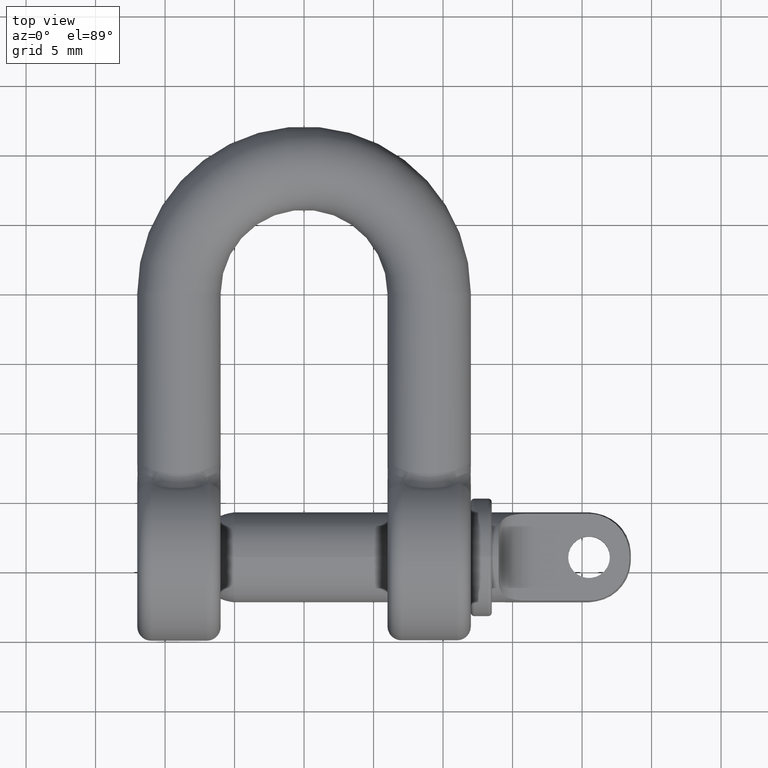
[diagram: clean part render]
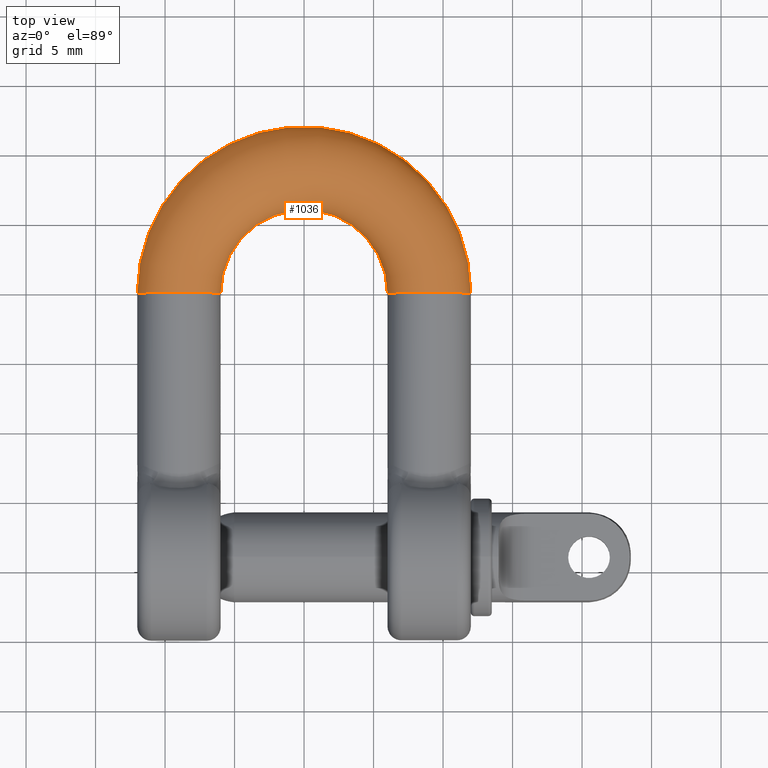
[diagram: same view with one face highlighted and labeled with its STEP entity id]
A machine part, top view. The second image highlights one B-rep face of the part: STEP entity #1036.
In plain terms, the highlighted toroidal blend (fillet) surface has major radius 9 mm and minor (blend) radius 3 mm.
Its self-contained STEP definition (entity closure, byte-faithful):
#975 = CARTESIAN_POINT ( 'NONE',  ( 6.000000000000000000, 25.00000000000000000, 3.673940397442061300E-016 ) ) ;
#1036 = ADVANCED_FACE ( 'NONE', ( #11951 ), #2427, .T. ) ;
#1877 = CIRCLE ( 'NONE', #10130, 6.000000000000000000 ) ;
#1952 = ORIENTED_EDGE ( 'NONE', *, *, #2062, .F. ) ;
#1965 = DIRECTION ( 'NONE',  ( 1.224646799147353200E-016, -1.000000000000000000, 0.0000000000000000000 ) ) ;
#1990 = VERTEX_POINT ( 'NONE', #9494 ) ;
#2062 = EDGE_CURVE ( 'NONE', #4591, #5235, #5464, .T. ) ;
#2145 = CIRCLE ( 'NONE', #6601, 12.00000000000000200 ) ;
#2188 = ORIENTED_EDGE ( 'NONE', *, *, #10260, .T. ) ;
#2249 = EDGE_LOOP ( 'NONE', ( #4106, #12828, #2188, #1952 ) ) ;
#2427 = TOROIDAL_SURFACE ( 'NONE', #10992, 9.000000000000001800, 3.000000000000000400 ) ;
#2856 = EDGE_CURVE ( 'NONE', #13919, #4591, #2145, .T. ) ;
#3449 = DIRECTION ( 'NONE',  ( -0.0000000000000000000, -0.0000000000000000000, -1.000000000000000000 ) ) ;
#4106 = ORIENTED_EDGE ( 'NONE', *, *, #2856, .F. ) ;
#4270 = DIRECTION ( 'NONE',  ( -1.000000000000000000, 0.0000000000000000000, 0.0000000000000000000 ) ) ;
#4479 = CIRCLE ( 'NONE', #5223, 3.000000000000000400 ) ;
#4591 = VERTEX_POINT ( 'NONE', #9710 ) ;
#5223 = AXIS2_PLACEMENT_3D ( 'NONE', #6955, #8041, #10436 ) ;
#5235 = VERTEX_POINT ( 'NONE', #975 ) ;
#5273 = DIRECTION ( 'NONE',  ( -1.000000000000000000, 0.0000000000000000000, 0.0000000000000000000 ) ) ;
#5464 = CIRCLE ( 'NONE', #10163, 3.000000000000000400 ) ;
#5511 = DIRECTION ( 'NONE',  ( -1.000000000000000000, 0.0000000000000000000, 0.0000000000000000000 ) ) ;
#6601 = AXIS2_PLACEMENT_3D ( 'NONE', #14290, #11982, #5273 ) ;
#6955 = CARTESIAN_POINT ( 'NONE',  ( -9.000000000000001800, 25.00000000000000000, 0.0000000000000000000 ) ) ;
#7314 = DIRECTION ( 'NONE',  ( 0.0000000000000000000, 0.0000000000000000000, 1.000000000000000000 ) ) ;
#7834 = CARTESIAN_POINT ( 'NONE',  ( 0.0000000000000000000, 25.00000000000000000, 3.673940397442060400E-016 ) ) ;
#7966 = CARTESIAN_POINT ( 'NONE',  ( -12.00000000000000200, 25.00000000000000000, 3.673940397442059900E-016 ) ) ;
#8041 = DIRECTION ( 'NONE',  ( 0.0000000000000000000, 1.000000000000000000, 0.0000000000000000000 ) ) ;
#8600 = CARTESIAN_POINT ( 'NONE',  ( 9.000000000000001800, 25.00000000000000000, 0.0000000000000000000 ) ) ;
#9494 = CARTESIAN_POINT ( 'NONE',  ( -6.000000000000000000, 25.00000000000000000, 0.0000000000000000000 ) ) ;
#9710 = CARTESIAN_POINT ( 'NONE',  ( 12.00000000000000200, 25.00000000000000000, 0.0000000000000000000 ) ) ;
#9914 = CARTESIAN_POINT ( 'NONE',  ( 0.0000000000000000000, 25.00000000000000000, 0.0000000000000000000 ) ) ;
#10130 = AXIS2_PLACEMENT_3D ( 'NONE', #7834, #3449, #5511 ) ;
#10163 = AXIS2_PLACEMENT_3D ( 'NONE', #8600, #1965, #7314 ) ;
#10260 = EDGE_CURVE ( 'NONE', #1990, #5235, #1877, .T. ) ;
#10436 = DIRECTION ( 'NONE',  ( 0.0000000000000000000, 0.0000000000000000000, 1.000000000000000000 ) ) ;
#10992 = AXIS2_PLACEMENT_3D ( 'NONE', #9914, #11922, #4270 ) ;
#11922 = DIRECTION ( 'NONE',  ( -0.0000000000000000000, -0.0000000000000000000, -1.000000000000000000 ) ) ;
#11951 = FACE_OUTER_BOUND ( 'NONE', #2249, .T. ) ;
#11982 = DIRECTION ( 'NONE',  ( -0.0000000000000000000, -0.0000000000000000000, -1.000000000000000000 ) ) ;
#12828 = ORIENTED_EDGE ( 'NONE', *, *, #14256, .T. ) ;
#13919 = VERTEX_POINT ( 'NONE', #7966 ) ;
#14256 = EDGE_CURVE ( 'NONE', #13919, #1990, #4479, .T. ) ;
#14290 = CARTESIAN_POINT ( 'NONE',  ( 0.0000000000000000000, 25.00000000000000000, 0.0000000000000000000 ) ) ;